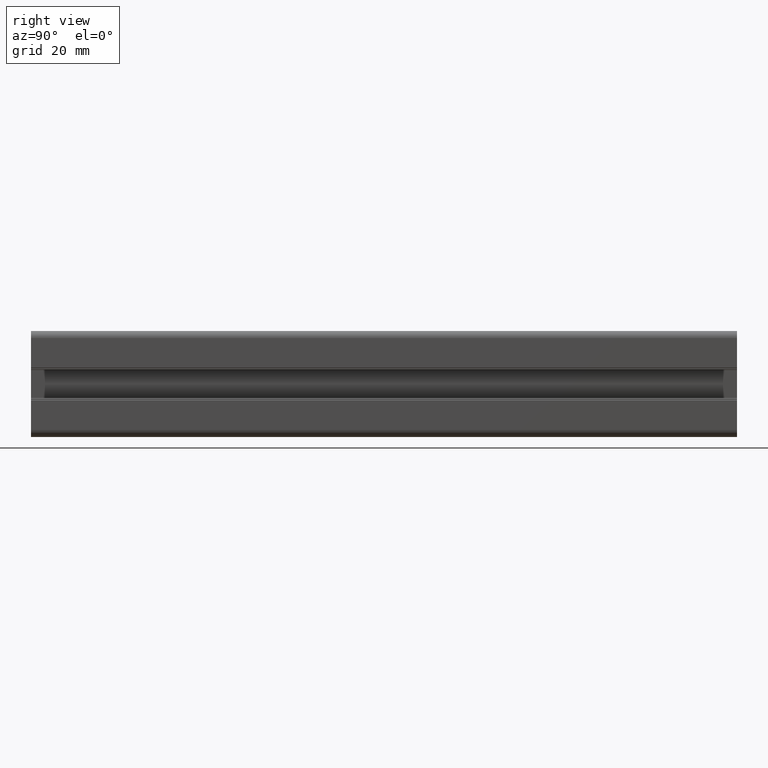
[diagram: clean part render]
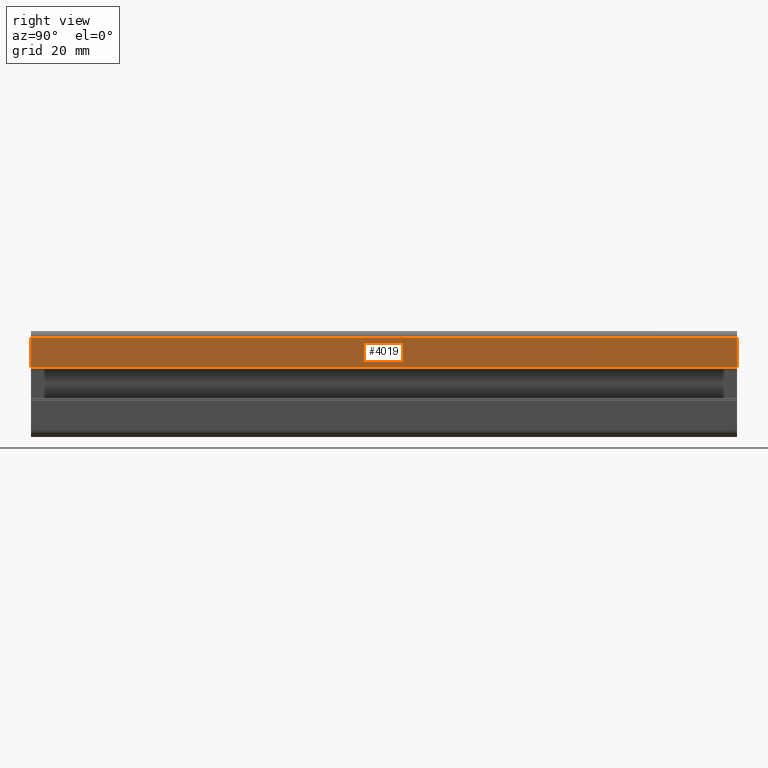
[diagram: same view with one face highlighted and labeled with its STEP entity id]
A machine part, right view. The second image highlights one B-rep face of the part: STEP entity #4019.
In plain terms, the highlighted planar face has unit normal (1, -0, 0).
Its self-contained STEP definition (entity closure, byte-faithful):
#110 = CARTESIAN_POINT ( 'NONE',  ( 22.50000000000319400, 0.0000000000000000000, 4.699972268721338300 ) ) ;
#351 = ORIENTED_EDGE ( 'NONE', *, *, #5169, .T. ) ;
#428 = VERTEX_POINT ( 'NONE', #5519 ) ;
#487 = EDGE_CURVE ( 'NONE', #3794, #1546, #2114, .T. ) ;
#563 = CARTESIAN_POINT ( 'NONE',  ( 22.49999999991250000, 0.0000000000000000000, 13.00002767684867800 ) ) ;
#567 = CARTESIAN_POINT ( 'NONE',  ( 22.49999999991250000, 0.0000000000000000000, 13.00002767684870100 ) ) ;
#833 = EDGE_CURVE ( 'NONE', #428, #2759, #983, .T. ) ;
#849 = VECTOR ( 'NONE', #2168, 1000.000000000000000 ) ;
#889 = DIRECTION ( 'NONE',  ( 1.092719685206790000E-011, 0.0000000000000000000, -1.000000000000000000 ) ) ;
#983 = LINE ( 'NONE', #3882, #849 ) ;
#1089 = ORIENTED_EDGE ( 'NONE', *, *, #3288, .T. ) ;
#1169 = EDGE_LOOP ( 'NONE', ( #1705, #351, #5278, #1089 ) ) ;
#1275 = FACE_OUTER_BOUND ( 'NONE', #1169, .T. ) ;
#1546 = VERTEX_POINT ( 'NONE', #110 ) ;
#1705 = ORIENTED_EDGE ( 'NONE', *, *, #487, .T. ) ;
#2114 = LINE ( 'NONE', #4302, #2589 ) ;
#2168 = DIRECTION ( 'NONE',  ( -0.0000000000000000000, 0.0000000000000000000, -1.000000000000000000 ) ) ;
#2589 = VECTOR ( 'NONE', #889, 1000.000000000000000 ) ;
#2739 = CARTESIAN_POINT ( 'NONE',  ( 22.49999999995784700, 200.0000000000000000, 4.699972268720245000 ) ) ;
#2759 = VERTEX_POINT ( 'NONE', #2739 ) ;
#2858 = AXIS2_PLACEMENT_3D ( 'NONE', #3326, #3307, #4592 ) ;
#2907 = PLANE ( 'NONE',  #2858 ) ;
#2935 = LINE ( 'NONE', #567, #4317 ) ;
#3288 = EDGE_CURVE ( 'NONE', #428, #3794, #2935, .T. ) ;
#3307 = DIRECTION ( 'NONE',  ( 1.000000000000000000, -0.0000000000000000000, 1.092719685206790000E-011 ) ) ;
#3326 = CARTESIAN_POINT ( 'NONE',  ( 22.49999999991250000, 0.0000000000000000000, 13.00002767684870100 ) ) ;
#3764 = VECTOR ( 'NONE', #4209, 1000.000000000000000 ) ;
#3794 = VERTEX_POINT ( 'NONE', #563 ) ;
#3882 = CARTESIAN_POINT ( 'NONE',  ( 22.49999999991250000, 200.0000000000000000, 5.107025913275720100E-014 ) ) ;
#4019 = ADVANCED_FACE ( 'NONE', ( #1275 ), #2907, .T. ) ;
#4209 = DIRECTION ( 'NONE',  ( 0.0000000000000000000, 1.000000000000000000, 0.0000000000000000000 ) ) ;
#4245 = CARTESIAN_POINT ( 'NONE',  ( 22.50000000000319400, 0.0000000000000000000, 4.699972268721340100 ) ) ;
#4302 = CARTESIAN_POINT ( 'NONE',  ( 22.49999999991250000, 0.0000000000000000000, 13.00002767684870100 ) ) ;
#4317 = VECTOR ( 'NONE', #4831, 1000.000000000000000 ) ;
#4592 = DIRECTION ( 'NONE',  ( 1.092719685206790000E-011, 0.0000000000000000000, -1.000000000000000000 ) ) ;
#4831 = DIRECTION ( 'NONE',  ( -0.0000000000000000000, -1.000000000000000000, -0.0000000000000000000 ) ) ;
#4916 = LINE ( 'NONE', #4245, #3764 ) ;
#5169 = EDGE_CURVE ( 'NONE', #1546, #2759, #4916, .T. ) ;
#5278 = ORIENTED_EDGE ( 'NONE', *, *, #833, .F. ) ;
#5519 = CARTESIAN_POINT ( 'NONE',  ( 22.49999999991250000, 200.0000000000000000, 13.00002767683775000 ) ) ;